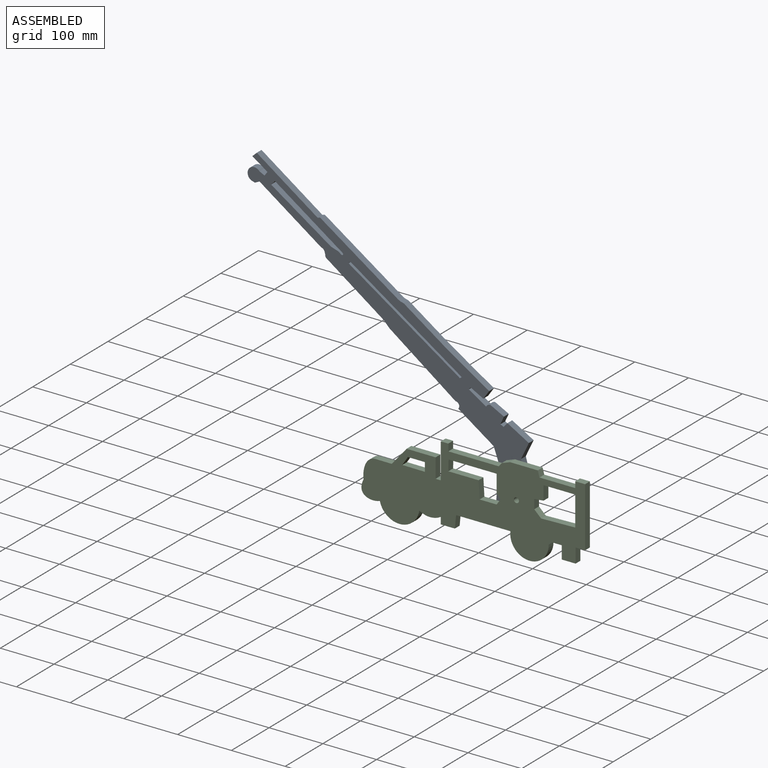
[diagram: assembled view]
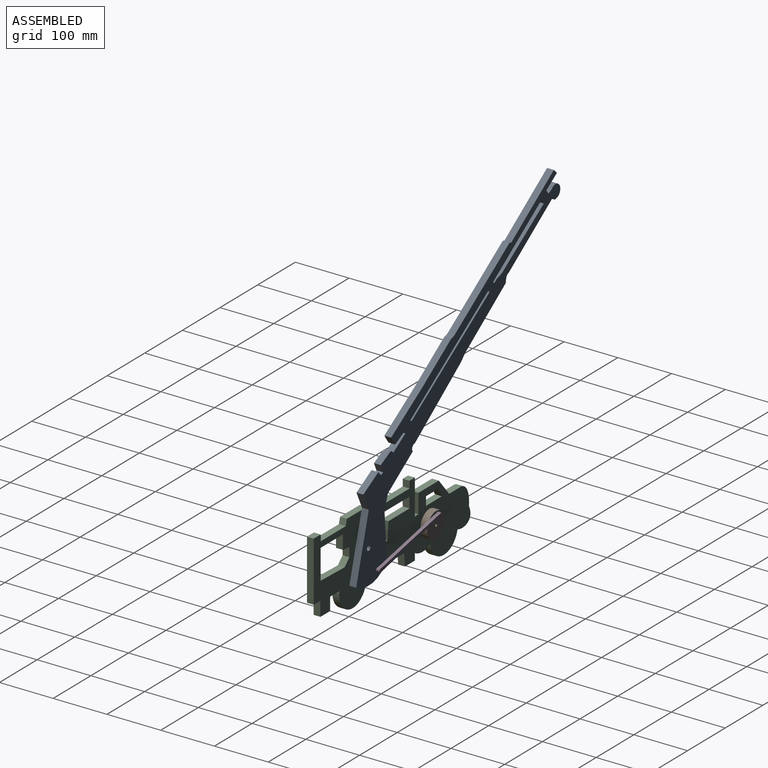
[diagram: assembled view, second angle]
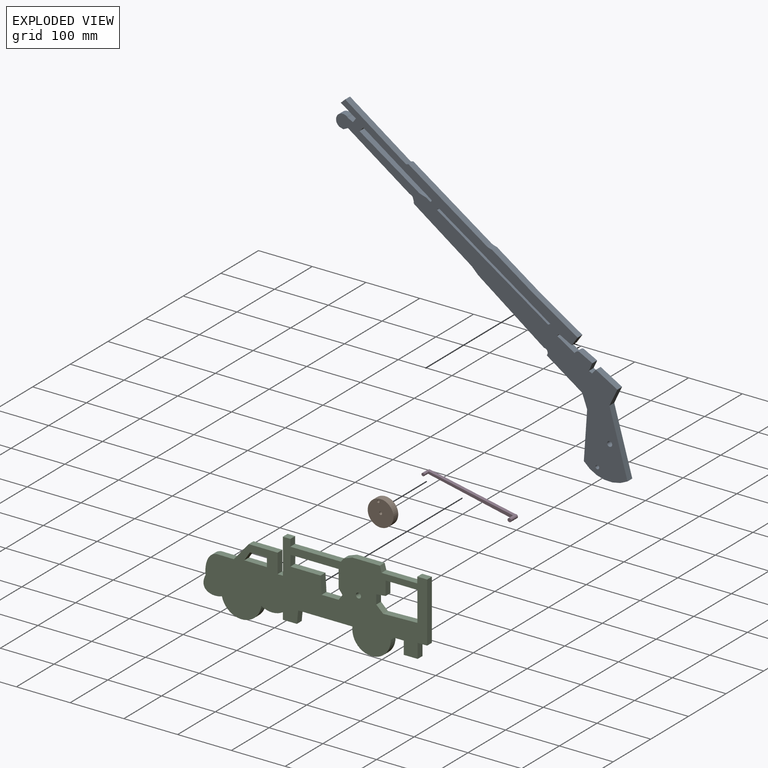
[diagram: exploded view]
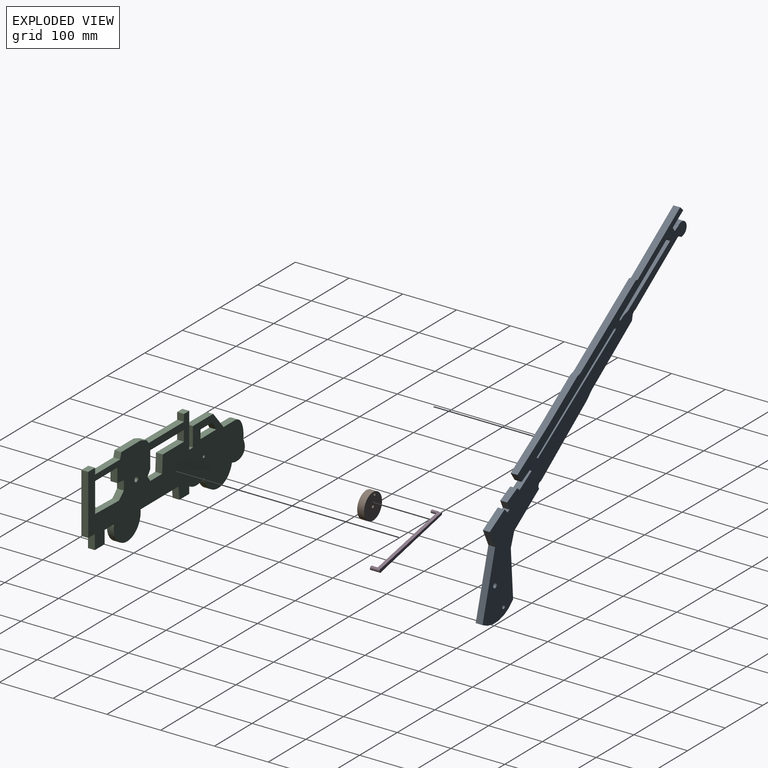
[diagram: exploded view, second angle]
ASSEMBLY  parts=4 mates=4
PART A: 56 faces, bbox 418.1x12.7x628.5 mm
  f0: plane 12.7x2.52mm, normal (0.97,0,-0.23), area 32.8mm2, adj f1,f48,f49,f50
  f1: plane 12.7x3.57mm, normal (0,0,-1), area 45.4mm2, adj f0,f2,f49,f50
  f2: plane 190.03x161.62mm, normal (-0.76,0,-0.65), area 3168.2mm2, adj f1,f3,f49,f50
  f3: plane 12.7x4.26mm, normal (-0.31,0,0.95), area 56.9mm2, adj f2,f48,f49,f50
  f4: plane 12.7x5.64mm, normal (0.77,0,0.64), area 92.8mm2, adj f5,f46,f49,f50
  f5: plane 12.7x11.59mm, normal (0.55,0,0.84), area 176.1mm2, adj f4,f6,f49,f50
  f6: plane 102.17x86.9mm, normal (0.76,0,0.65), area 1703.4mm2, adj f5,f7,f49,f50
  f7: plane 12.7x9.19mm, normal (0.51,0,-0.86), area 135.2mm2, adj f6,f8,f49,f50
  f8: plane 118.05x97.28mm, normal (-0.77,0,-0.64), area 1942.6mm2, adj f7,f46,f49,f50
  f9: cylinder r=6.3mm len=12.7mm, axis (0,-1,0), area 75.2mm2, adj f10,f47,f49,f50
  f10: plane 18.56x17.82mm, normal (-0.69,0,-0.72), area 326.8mm2, adj f9,f11,f49,f50
  f11: plane 14.82x12.7mm, normal (0.63,0,-0.77), area 243.3mm2, adj f10,f12,f49,f50
  f12: plane 24.41x21.87mm, normal (0.74,0,0.67), area 416.2mm2, adj f11,f13,f49,f50
  f13: plane 48.82x43.43mm, normal (0.75,0,0.66), area 829.8mm2, adj f12,f14,f49,f50
  f14: plane 71.13x58.99mm, normal (0.77,0,0.64), area 1173.6mm2, adj f13,f15,f49,f50
  f15: plane 12.7x5.94mm, normal (0.51,0,0.86), area 87.9mm2, adj f14,f16,f49,f50
  f16: plane 12.7x2.85mm, normal (0.68,0,0.74), area 49.1mm2, adj f15,f17,f49,f50
  f17: plane 134.8x112.95mm, normal (0.77,0,0.64), area 2233.5mm2, adj f16,f18,f49,f50
  f18: plane 12.7x4.87mm, normal (0,0,1), area 61.8mm2, adj f17,f19,f49,f50
  f19: plane 106.78x87.41mm, normal (0.77,0,0.63), area 1752.6mm2, adj f18,f20,f49,f50
  f20: plane 12.7x9.99mm, normal (-0.47,0,0.88), area 143.5mm2, adj f19,f21,f49,f50
  f21: plane 25.98x21.87mm, normal (-0.77,0,-0.64), area 431.3mm2, adj f20,f22,f49,f50
  f22: plane 12.7x7.4mm, normal (-0.62,0,0.79), area 119.6mm2, adj f21,f23,f49,f50
  f23: plane 12.7x7.62mm, normal (0.67,0,0.74), area 131mm2, adj f22,f24,f49,f50
  f24: cylinder r=12.61mm len=24.11mm, axis (0,-1,0), area 561.4mm2, adj f23,f25,f49,f50
  f25: plane 12.7x6.28mm, normal (-0.54,0,-0.84), area 94.8mm2, adj f24,f26,f49,f50
  f26: plane 12.7x9.41mm, normal (0.19,0,-0.98), area 121.7mm2, adj f25,f27,f49,f50
  f27: plane 108.21x88.46mm, normal (-0.77,0,-0.63), area 1775mm2, adj f26,f28,f49,f50
  f28: cylinder r=8.27mm len=12.7mm, axis (0,-1,0), area 100.7mm2, adj f27,f29,f49,f50
  f29: plane 12.7x5.73mm, normal (-1,0,0), area 72.8mm2, adj f28,f30,f49,f50
  f30: plane 12.7x3.2mm, normal (-0.97,0,0.22), area 41.7mm2, adj f29,f31,f49,f50
  f31: plane 12.7x2.07mm, normal (-0.96,0,-0.28), area 27.3mm2, adj f30,f32,f49,f50
  f32: plane 102.05x82.33mm, normal (-0.78,0,-0.63), area 1665.2mm2, adj f31,f33,f49,f50
  f33: plane 14.23x12.7mm, normal (-0.88,0,-0.48), area 206.4mm2, adj f32,f34,f49,f50
  f34: plane 119.47x93.56mm, normal (-0.79,0,-0.62), area 1927.1mm2, adj f33,f35,f49,f50
  f35: cylinder r=6.65mm len=12.7mm, axis (0,-1,0), area 200.9mm2, adj f34,f36,f49,f50
  f36: plane 59.23x49.12mm, normal (-0.77,0,-0.64), area 977.2mm2, adj f35,f37,f49,f50
  f37: plane 12.7x2.86mm, normal (-0.82,0,-0.58), area 44.4mm2, adj f36,f38,f49,f50
  f38: plane 26.66x12.7mm, normal (-1,0,-0.07), area 339.4mm2, adj f37,f49,f50,f51
  f39: plane 25.6x22.43mm, normal (0.75,0,-0.66), area 432.2mm2, adj f40,f49,f50,f52
  f40: plane 32.85x32.13mm, normal (0.71,0,0.7), area 583.6mm2, adj f39,f41,f49,f50
  f41: plane 12.7x9.09mm, normal (-0.54,0,0.84), area 137.2mm2, adj f40,f42,f49,f50
  f42: plane 12.7x4.96mm, normal (0.65,0,0.76), area 82.5mm2, adj f41,f43,f49,f50
  f43: plane 12.7x12.17mm, normal (0.76,0,-0.65), area 202.6mm2, adj f42,f44,f49,f50
  f44: plane 21.06x19.73mm, normal (0.68,0,0.73), area 366.4mm2, adj f43,f45,f49,f50
  f45: cylinder r=9.86mm len=12.7mm, axis (0,-1,0), area 119.6mm2, adj f44,f47,f49,f50
  f46: cylinder r=2.16mm len=12.7mm, axis (0,-1,0), area 86.2mm2, adj f4,f8,f49,f50
  f47: plane 28.31x25.59mm, normal (0.74,0,0.67), area 484.7mm2, adj f9,f45,f49,f50
  f48: plane 188.88x161.52mm, normal (0.76,0,0.65), area 3156.3mm2, adj f0,f3,f49,f50
  f49: plane 628.5x418.09mm, normal (0,1,0), area 34703.4mm2, adj f0,f1,f2,f3,f4,f5,f6,f7
  f50: plane 628.5x418.09mm, normal (0,-1,0), area 34703.4mm2, adj f0,f1,f2,f3,f4,f5,f6,f7
  f51: plane 83.41x30.01mm, normal (-0.94,0,0.34), area 1125.8mm2, adj f38,f49,f50,f53
  f52: plane 123.14x12.7mm, normal (1,0,0), area 1563.9mm2, adj f39,f49,f50,f53
  f53: cylinder r=63.5mm len=74.76mm, axis (0,1,0), area 1135.8mm2, adj f49,f50,f51,f52
  f54: cylinder r=4.76mm len=12.7mm, axis (0,1,0), area 380mm2, adj f49,f50
  f55: cylinder r=3.48mm len=12.7mm, axis (0,1,0), area 277.6mm2, adj f49,f50
PART B: 5 faces, bbox 48x12.7x48 mm
  f0: cylinder r=2.24mm len=12.7mm, axis (0,-1,0), area 179mm2, adj f3,f4
  f1: cylinder r=2.71mm len=12.7mm, axis (0,-1,0), area 216.5mm2, adj f3,f4
  f2: cylinder r=23.99mm len=47.97mm, axis (0,-1,0), area 1914mm2, adj f3,f4
  f3: plane 47.97x47.97mm, normal (0,1,0), area 1768.5mm2, adj f0,f1,f2
  f4: plane 47.97x47.97mm, normal (0,-1,0), area 1768.5mm2, adj f0,f1,f2
PART C: 55 faces, bbox 420.9x12.7x159.4 mm
  f0: plane 26.02x12.7mm, normal (1,0,0), area 330.5mm2, adj f1,f49,f50,f51
  f1: plane 59.03x12.7mm, normal (0,0,-1), area 749.6mm2, adj f0,f2,f50,f51
  f2: plane 55.43x12.7mm, normal (-1,0,0), area 704mm2, adj f1,f3,f50,f51
  f3: plane 63.68x12.7mm, normal (-0.03,0,1), area 809mm2, adj f2,f4,f50,f51
  f4: plane 12.7x12.69mm, normal (0.69,0,0.73), area 222.4mm2, adj f3,f5,f50,f51
  f5: plane 17.35x12.7mm, normal (1,0,0), area 220.3mm2, adj f4,f49,f50,f51
  f6: plane 16.35x12.7mm, normal (-1,0,0), area 207.7mm2, adj f7,f46,f50,f51
  f7: plane 42.02x12.7mm, normal (0.01,0,1), area 533.6mm2, adj f6,f8,f50,f51
  f8: plane 16.1x12.7mm, normal (0.84,0,-0.55), area 244.6mm2, adj f7,f46,f50,f51
  f9: plane 19.95x12.7mm, normal (1,0,-0.02), area 253.4mm2, adj f10,f47,f50,f51
  f10: plane 89.29x12.7mm, normal (0,0,-1), area 1134mm2, adj f9,f11,f50,f51
  f11: plane 32.3x12.7mm, normal (-1,0,0), area 410.2mm2, adj f10,f12,f50,f51
  f12: plane 12.7x9.5mm, normal (-0.8,0,-0.6), area 150.8mm2, adj f11,f13,f50,f51
  f13: plane 12.7x9.97mm, normal (-0.81,0,0.58), area 155.7mm2, adj f12,f14,f50,f51
  f14: plane 31.58x12.7mm, normal (0,0,1), area 401.1mm2, adj f13,f15,f50,f51
  f15: plane 31.82x12.7mm, normal (1,0,0.06), area 404.8mm2, adj f14,f47,f50,f51
  f16: extruded ~34.31x30.21mm, area 735.6mm2, adj f17,f48,f50,f51
  f17: cylinder r=37.31mm len=73.34mm, axis (0,1,0), area 1318.7mm2, adj f16,f18,f50,f51
  f18: cylinder r=37.99mm len=40mm, axis (0,1,0), area 535mm2, adj f17,f19,f50,f51
  f19: plane 12.7x12.58mm, normal (-1,0,0), area 159.8mm2, adj f18,f20,f50,f51
  f20: plane 26.17x12.7mm, normal (0,0,-1), area 332.3mm2, adj f19,f21,f50,f51
  f21: plane 23.24x12.7mm, normal (0.99,0,-0.1), area 296.7mm2, adj f20,f22,f50,f51
  f22: plane 100.93x12.7mm, normal (0,0,-1), area 1281.7mm2, adj f21,f23,f50,f51
  f23: cylinder r=35.8mm len=71.61mm, axis (0,1,0), area 1566.1mm2, adj f22,f24,f50,f51
  f24: plane 24.7x12.7mm, normal (0,0,-1), area 313.7mm2, adj f23,f25,f50,f51
  f25: plane 23.98x12.7mm, normal (-1,0,0), area 304.6mm2, adj f24,f26,f50,f51
  f26: plane 25.88x12.7mm, normal (0,0,-1), area 328.7mm2, adj f25,f27,f50,f51
  f27: plane 27.07x12.7mm, normal (1,0,0), area 343.8mm2, adj f26,f28,f50,f51
  f28: plane 17.64x12.7mm, normal (0,0,-1), area 224mm2, adj f27,f29,f50,f51
  f29: plane 111.14x12.7mm, normal (1,0,0), area 1411.4mm2, adj f28,f30,f50,f51
  f30: plane 18.35x12.7mm, normal (0,0,1), area 233.1mm2, adj f29,f31,f50,f51
  f31: plane 12.7x11.4mm, normal (-1,0,0), area 144.8mm2, adj f30,f32,f50,f51
  f32: plane 66.49x12.7mm, normal (0,0,1), area 844.4mm2, adj f31,f33,f50,f51
  f33: plane 12.7x11.16mm, normal (0.96,0,0.27), area 147.1mm2, adj f32,f34,f50,f51
  f34: plane 51.29x12.7mm, normal (0,0,1), area 651.4mm2, adj f33,f35,f50,f51
  f35: plane 15.91x12.7mm, normal (-0.34,0,0.94), area 214.6mm2, adj f34,f36,f50,f51
  f36: plane 12.7x6.89mm, normal (-0.78,0,0.62), area 111.6mm2, adj f35,f37,f50,f51
  f37: plane 93.8x12.7mm, normal (0,0,1), area 1191.3mm2, adj f36,f38,f50,f51
  f38: plane 13.06x12.7mm, normal (1,0,0), area 165.9mm2, adj f37,f39,f50,f51
  f39: plane 14.01x12.7mm, normal (0,0,1), area 177.9mm2, adj f38,f40,f50,f51
  f40: plane 65.54x12.7mm, normal (-1,0,0), area 832.4mm2, adj f39,f41,f50,f51
  f41: plane 12.7x9.74mm, normal (0,0,1), area 123.7mm2, adj f40,f42,f50,f51
  f42: plane 36.1x12.7mm, normal (1,0,0), area 458.4mm2, adj f41,f43,f50,f51
  f43: plane 53.91x12.7mm, normal (0,0,1), area 684.6mm2, adj f42,f44,f50,f51
  f44: plane 32.77x27.55mm, normal (-0.77,0,0.64), area 543.7mm2, adj f43,f45,f50,f51
  f45: plane 31.89x12.7mm, normal (0,0,1), area 405mm2, adj f44,f48,f50,f51
  f46: plane 31.45x12.7mm, normal (0,0,-1), area 399.4mm2, adj f6,f8,f50,f51
  f47: plane 56.28x12.7mm, normal (0,0,1), area 714.8mm2, adj f9,f15,f50,f51
  f48: extruded ~40.51x21.1mm, area 639.7mm2, adj f16,f45,f50,f51
  f49: plane 17.35x12.7mm, normal (0.1,0,-1), area 221.4mm2, adj f0,f5,f50,f51
  f50: plane 420.87x159.42mm, normal (0,-1,0), area 38700.3mm2, adj f0,f1,f2,f3,f4,f5,f6,f7
  f51: plane 420.87x159.42mm, normal (0,1,0), area 38677.2mm2, adj f0,f1,f2,f3,f4,f5,f6,f7
  f52: cylinder r=4.76mm len=12.7mm, axis (0,1,0), area 380mm2, adj f50,f51
  f53: cylinder r=2.71mm len=6.35mm, axis (0,1,0), area 108.3mm2, adj f51,f54
  f54: plane 5.43x5.43mm, normal (0,1,0), area 23.1mm2, adj f53
PART D: 11 faces, bbox 170.2x17.8x14.8 mm
  f0: cylinder r=3.48mm len=6.96mm, axis (0,-1,0), area 92.2mm2, adj f1,f3,f4,f5
  f1: plane 162.3x9.25mm, normal (-0.06,0,-1), area 1032.2mm2, adj f0,f2,f4,f5,f6
  f2: cylinder r=2.24mm len=6.35mm, axis (0,-1,0), area 44.6mm2, adj f1,f3,f4,f6
  f3: plane 162.24x7.67mm, normal (0.05,0,1), area 1031.4mm2, adj f0,f2,f4,f5,f6
  f4: plane 169.7x14.27mm, normal (0,1,0), area 894.1mm2, adj f0,f1,f2,f3
  f5: plane 165.93x14.19mm, normal (0,-1,0), area 838.4mm2, adj f0,f1,f3,f7,f9
  f6: plane 5.57x4.54mm, normal (0,1,0), area 5.5mm2, adj f1,f2,f3,f7
  f7: cylinder r=2.78mm len=11.43mm, axis (0,1,0), area 199.9mm2, adj f5,f6,f8
  f8: plane 5.57x5.57mm, normal (0,-1,0), area 24.3mm2, adj f7
  f9: cylinder r=3.42mm len=11.43mm, axis (0,1,0), area 245.9mm2, adj f5,f10
  f10: plane 6.85x6.85mm, normal (0,-1,0), area 36.8mm2, adj f9
PLACE A rot(axis=(0,-1,0),15.8deg) t=(-56.29,6.34,-82.7)mm
PLACE B rot(axis=(0,1,0),72.6deg) t=(230.96,6.34,-393.96)mm
PLACE C t=(18.82,6.34,-56.79)mm fixed
PLACE D rot(axis=(0,1,0),8.8deg) t=(79.66,6.34,-65.26)mm
MATE revolute A.f53 <-> C.f52  axis (0,-1,0) through (74.49,6.34,-339.98)mm
MATE revolute D.f0 <-> A.f55  axis (0,1,0) through (51.57,19.04,-384.98)mm
MATE cylindrical B.f0 <-> D.f2  axis (0,-1,0) through (-109.14,19.04,-351.35)mm
MATE revolute C.f53 <-> B.f1  axis (0,1,0) through (-104.81,6.34,-369.9)mm
